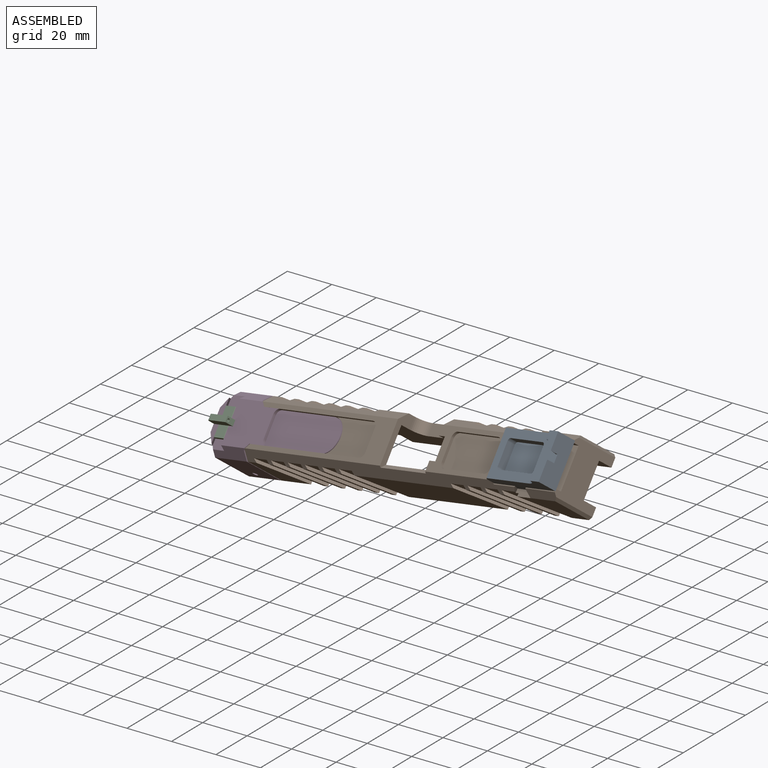
[diagram: assembled view]
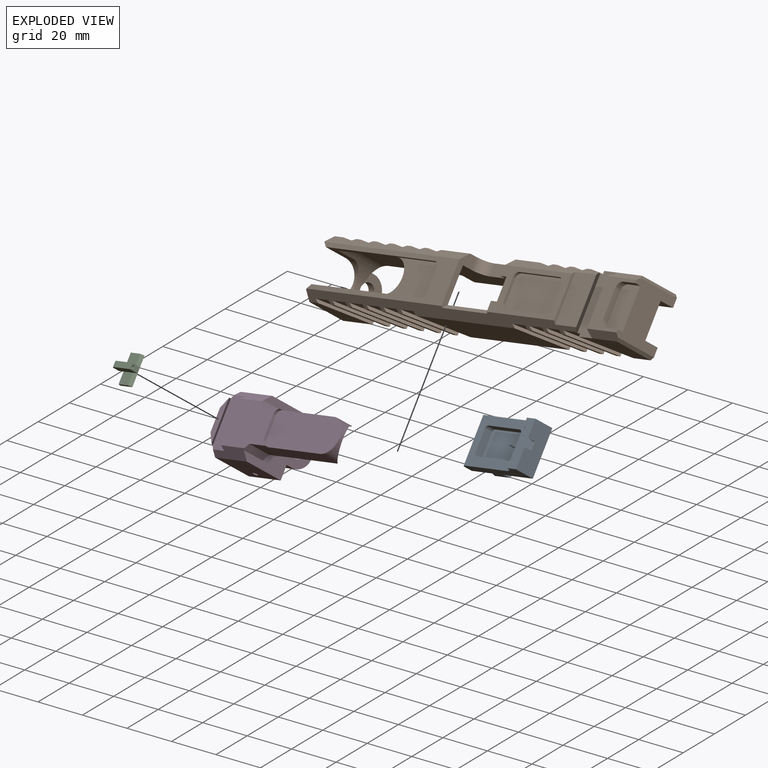
[diagram: exploded view]
GUIDED TOUR — MATED ASSEMBLY (Onshape document 9dbe3490bae622596801388b, AutoMate assembly 9dbe3490bae622596801388b_7340980fd5a3a3c24a6542d4_834514834a4c5244cc62e794_default)

This assembly has 4 components, labeled P0..P3 below (a component is one placed occurrence of a part; the same part can appear more than once), held together by 5 mates. A mate is a constraint between two components; its type names the relative motion it leaves free:
  PLANAR — leaves sliding in the plane through the listed point (normal = the listed direction) and rotation about that normal free.
Axis/direction vectors are unit vectors and 'through' points are millimeter coordinates, both in the assembly's world frame.

MATES
  1. PLANAR "Planar 4": P2 <-> P3, direction (0.363, 0.709, -0.605) through (-193.44, -1.95, -23.55) mm
  2. PLANAR "Planar 2": P3 <-> P1, direction (-0.029, 0.658, 0.753) through (-168.59, -9.09, -14.50) mm
  3. PLANAR "Planar 5": P0 <-> P1, direction (0.363, 0.709, -0.605) through (-20.52, -51.45, 18.34) mm
  4. PLANAR "Planar 3": P2 <-> P3, direction (-0.988, -0.133, 0.078) through (-193.12, -6.78, -27.76) mm
  5. PLANAR "Planar 1": P1 <-> P3, direction (-0.363, -0.709, 0.605) through (-125.09, -25.86, -8.06) mm

ASSEMBLY ORDER
  1. P3 — the base component [order heuristic]
  2. P1 — core [order heuristic]
  3. P2 [order verified]
  4. P0 [order verified]
Order-tag legend:
  [order verified] — this step's position reverses a verified removal order: the component was checked to insert without passing through the ones already placed.
  [order heuristic] — the first 2 components form the assembly's core: parts whose collision-free extraction could not be verified, listed in mate-graph order.

Of the 4 components, 1 carries the full construction recipe — the FeatureScript program that regenerates the part's solid from scratch; the rest are supplied as boundary geometry only.
Each toured component is shown spotlighted twice — in the assembled view, then in the exploded view, where a leader line traces a displaced component back to its assembled socket (saturated green if recipe-attached, orange if geometry-only; every other component desaturated gray) — followed by its recipe or geometry summary and the mates that hold it.
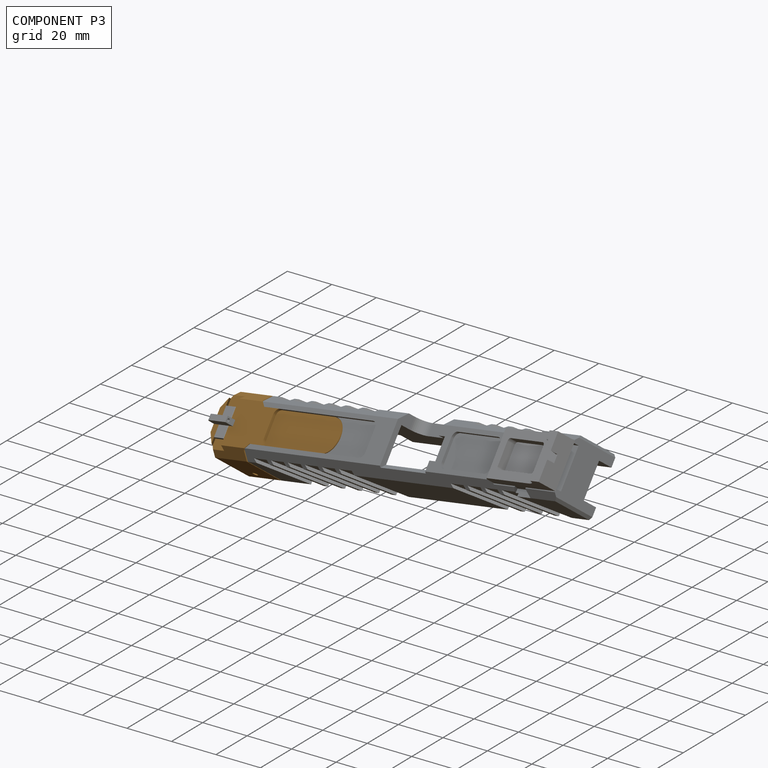
[diagram: component P3 — assembled]
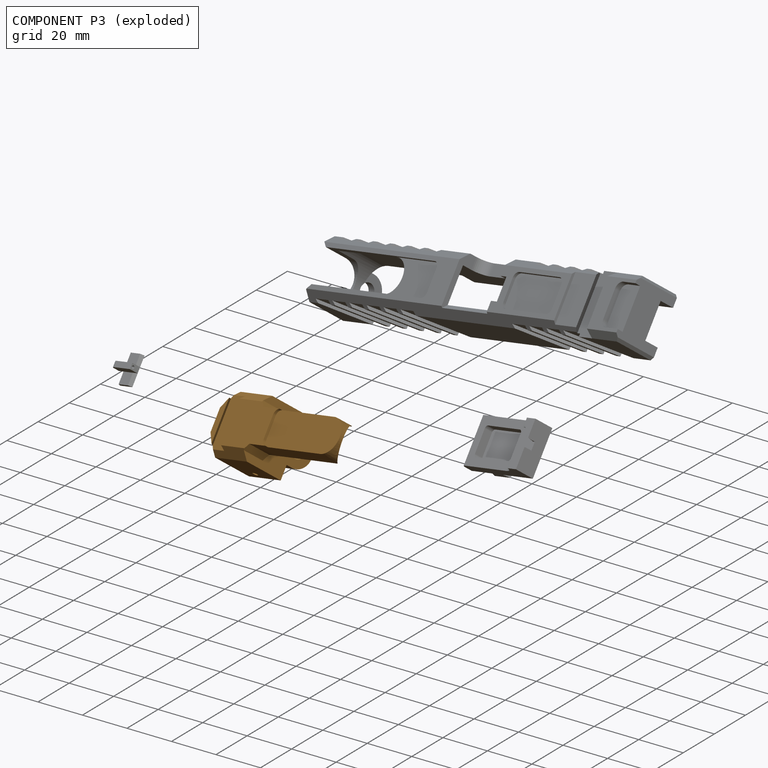
[diagram: component P3 — exploded]
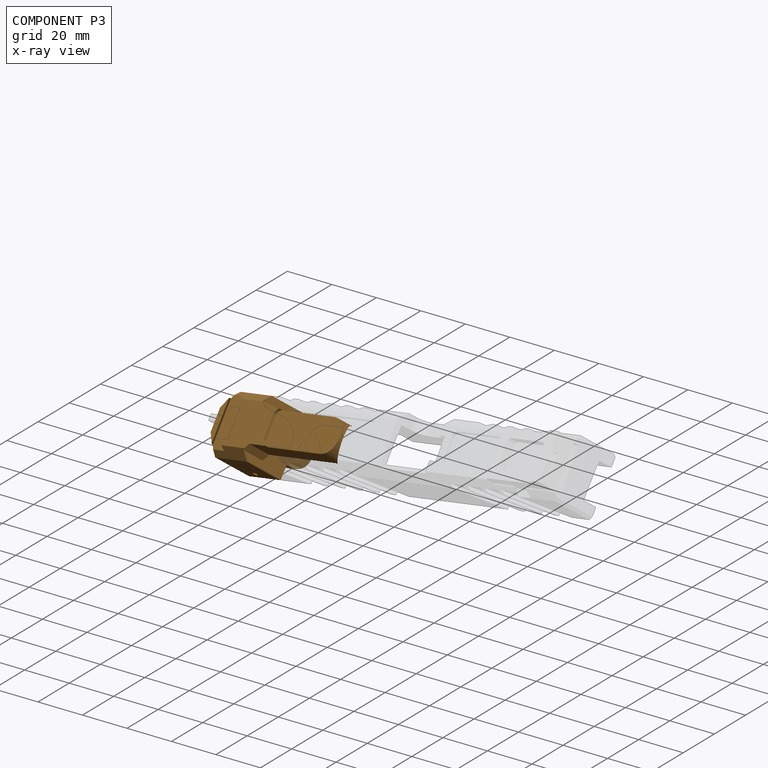
[diagram: component P3 — x-ray view]
COMPONENT P3 — geometry summary (no construction recipe available for this part):
  bounding box: 75.2 x 31.3 x 26.4 mm
  B-rep topology: 1 solid, 35 faces, 212 edges
  volume: 11614 mm^3 (19% of its bounding box)
  symmetry: mirror-symmetric across its x mid-plane
Held by: PLANAR mate "Planar 4" to P2; PLANAR mate "Planar 2" to P1; PLANAR mate "Planar 3" to P2; PLANAR mate "Planar 1" to P1.
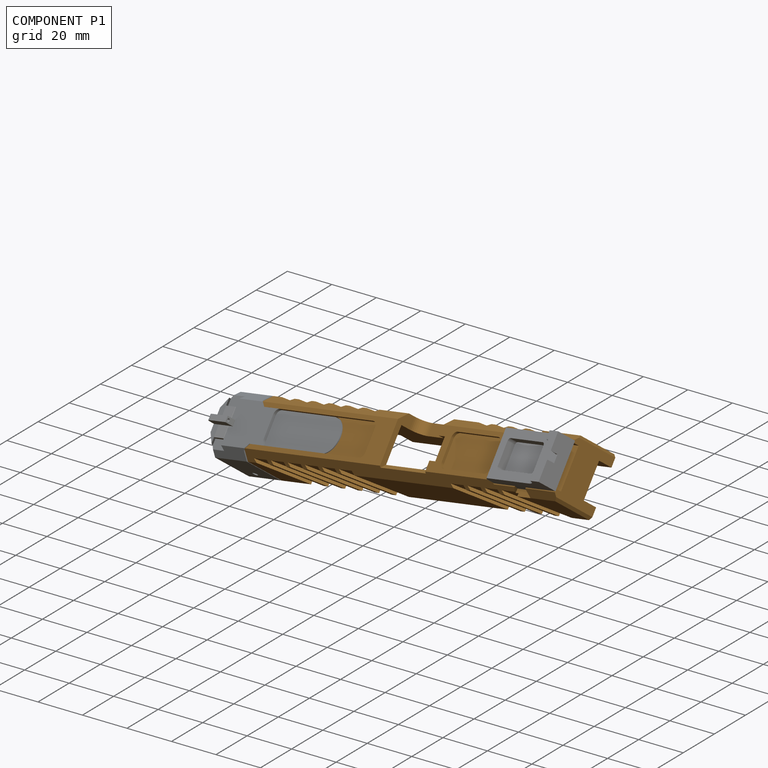
[diagram: component P1 — assembled]
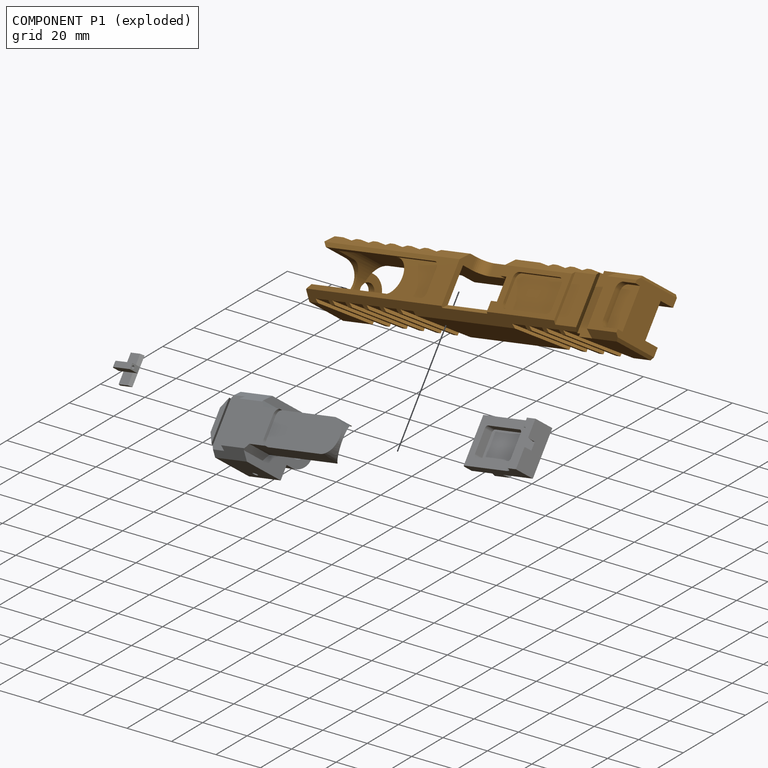
[diagram: component P1 — exploded]
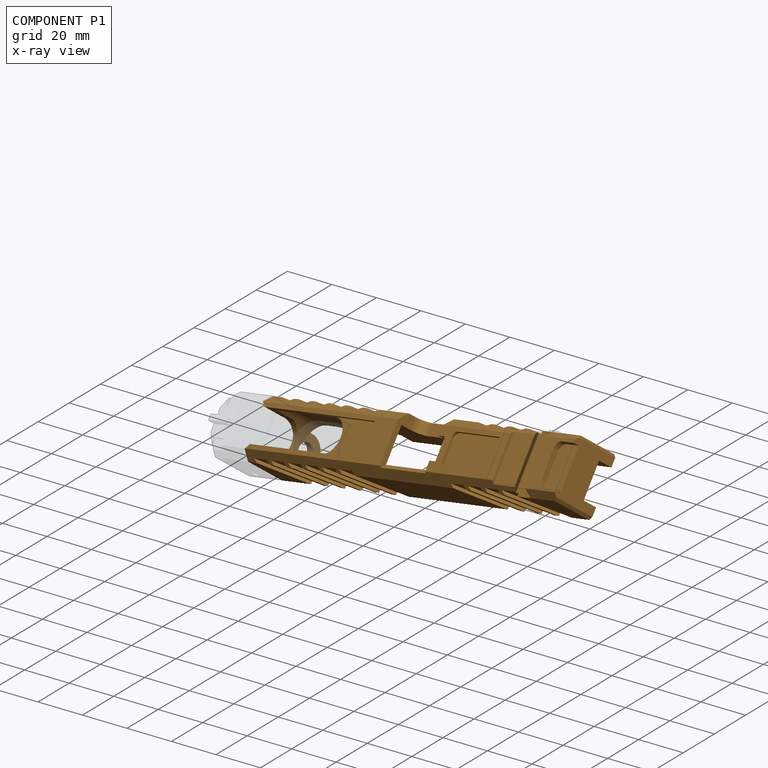
[diagram: component P1 — x-ray view]
COMPONENT P1 — geometry summary (no construction recipe available for this part):
  bounding box: 184.9 x 31.3 x 26.4 mm
  B-rep topology: 1 solid, 158 faces, 954 edges
  volume: 46992 mm^3 (31% of its bounding box)
Held by: PLANAR mate "Planar 2" to P3; PLANAR mate "Planar 5" to P0; PLANAR mate "Planar 1" to P3.
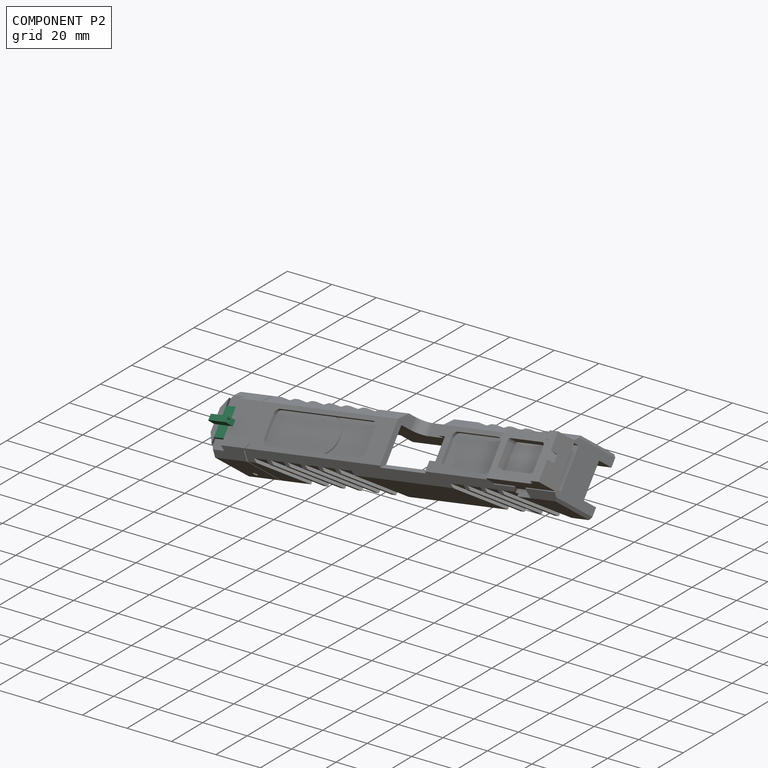
[diagram: component P2 — assembled]
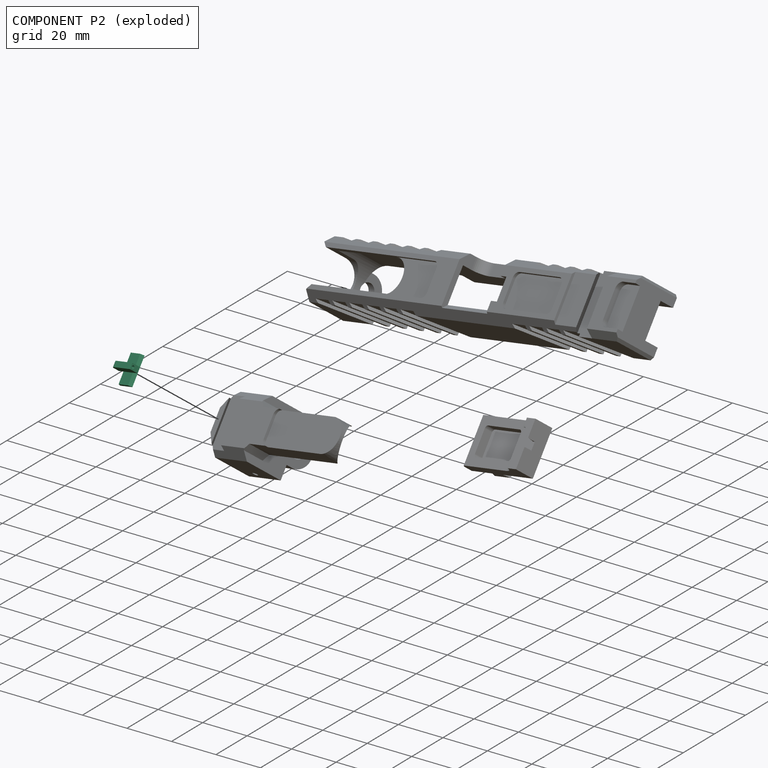
[diagram: component P2 — exploded]
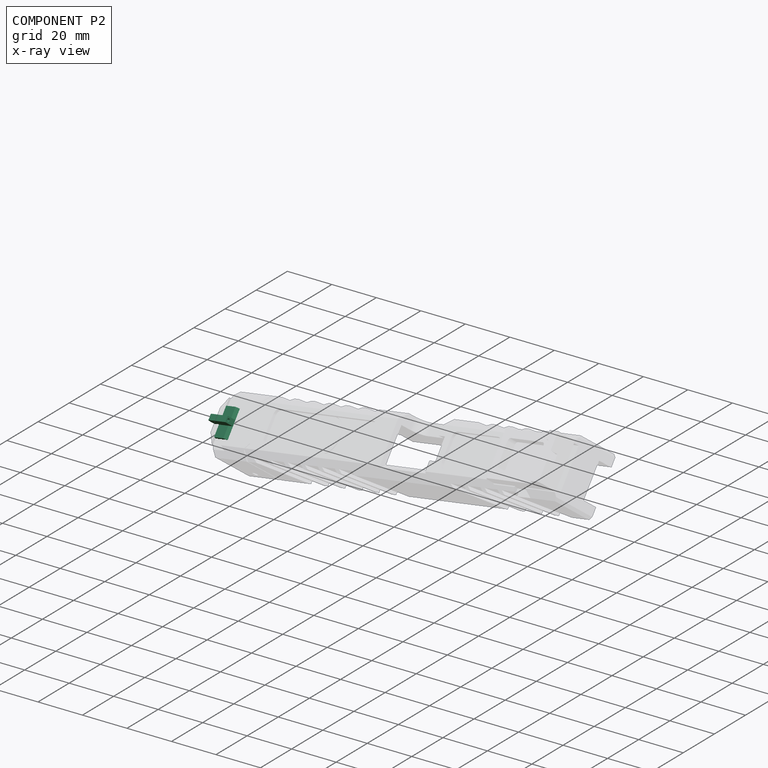
[diagram: component P2 — x-ray view]
COMPONENT P2 — recipe-attached (CADFS 00931303, mesh-verified: the recipe's output STEP matches this component's geometry to below the mesh-comparison resolution (tessellation chordal tolerance ~0.0266 mm)).
Held by: PLANAR mate "Planar 4" to P3; PLANAR mate "Planar 3" to P3.
Construction recipe (FeatureScript — the CAD program that rebuilds this solid; sketch coordinates are in the units given by the * unit suffixes, e.g. mm):

FeatureScript 1511;
import(path : "onshape/std/geometry.fs", version : "1511.0");
import(path : "onshape/std/common.fs", version : "1511.0");
const mm = millimeter;
const VERTEX = EntityType.VERTEX;
const EDGE = EntityType.EDGE;
const FACE = EntityType.FACE;
const BODY = EntityType.BODY;
function v(x, y){return vector(x, y);}
function OD(order){return orderDisambiguation(order);}
function OSD(set){return originalSetDisambiguation(set);}
function TD(topology){return topologyDisambiguation(topology);}
function TDD(query){return trueDependencyDisambiguation(query);}
function sQuery(a, b, c) {return sketchEntityQuery(a, b, c);}

annotation { "Feature Type Name" : "Feature", "Feature Type Description" : "" }
export const myFeature = defineFeature(function(context is Context, id is Id, definition is map)
    precondition{}
    {
        {
            var Q0;
            Q0=qCreatedBy(makeId("Front.planeOp"),FACE);
            var sketch = newSketch(context, id + "F0", { "sketchPlane" : qUnion([Q0])});
            skLineSegment(sketch, "E0", {"start": v(-3.74, 0) * mm, "end": v(3.62, 0) * mm});
            skLineSegment(sketch, "E1", {"start": v(3.62, 0) * mm, "end": v(2.74, 1.52) * mm});
            skLineSegment(sketch, "E2", {"start": v(2.74, 1.52) * mm, "end": v(5.49, 1.52) * mm});
            skLineSegment(sketch, "E3", {"start": v(5.49, 1.52) * mm, "end": v(5.49, 5.46) * mm});
            skLineSegment(sketch, "E4", {"start": v(5.49, 5.46) * mm, "end": v(-5.6, 5.46) * mm});
            skLineSegment(sketch, "E5", {"start": v(-5.6, 5.46) * mm, "end": v(-5.6, 1.52) * mm});
            skLineSegment(sketch, "E6", {"start": v(-5.6, 1.52) * mm, "end": v(-2.86, 1.52) * mm});
            skLineSegment(sketch, "E7", {"start": v(-2.86, 1.52) * mm, "end": v(-3.74, 0) * mm});
            skSolve(sketch);
        }
        {
            var Q0;
            Q0=makeQuery(id+"F0.imprint","IMPRINT",FACE,{"disambiguationData":[TD([[makeQuery(id+"F0.imprint","IMPRINT",EDGE,{"derivedFrom":sQuery(id+"F0.wireOp",EDGE,"E0")}),1.0]])]});
            extrude(context, id + "F1", {"entities" : qUnion([Q0]), "depth" : 12.7 * mm, "offsetDistance" : 25.4 * mm});
        }
        {
            var Q0;
            Q0=makeQuery(id+"F1.opExtrude","SWEPT_FACE",FACE,{"disambiguationData":[OSD([sQuery(id+"F0.wireOp",EDGE,"E3")])]});
            var sketch = newSketch(context, id + "F2", { "sketchPlane" : qUnion([Q0])});
            skLineSegment(sketch, "E8", {"start": v(-12.7, 1.52) * mm, "end": v(-7.62, 1.52) * mm});
            skLineSegment(sketch, "E9", {"start": v(-7.62, 1.52) * mm, "end": v(-7.62, 5.46) * mm});
            skLineSegment(sketch, "E10", {"start": v(-7.62, 5.46) * mm, "end": v(-5.08, 5.46) * mm});
            skLineSegment(sketch, "E11", {"start": v(-5.08, 5.46) * mm, "end": v(-5.08, 1.52) * mm});
            skLineSegment(sketch, "E12", {"start": v(-5.08, 1.52) * mm, "end": v(0, 1.52) * mm});
            skLineSegment(sketch, "E13", {"start": v(0, 1.52) * mm, "end": v(0, 0) * mm});
            skLineSegment(sketch, "E14", {"start": v(0, 0) * mm, "end": v(-12.7, 0) * mm});
            skLineSegment(sketch, "E15", {"start": v(-12.7, 0) * mm, "end": v(-12.7, 1.52) * mm});
            skSolve(sketch);
        }
        {
            var Q0;
            {var subQ0=sQuery(id+"F2.wireOp",EDGE,"E9");Q0=makeQuery(id+"F2.imprint","IMPRINT",FACE,{"disambiguationData":[TD([[makeQuery(id+"F2.imprint","IMPRINT",EDGE,{"derivedFrom":subQ0}),-1.0]])]});}
            var Q1;
            {var subQ1=sQuery(id+"F2.wireOp",EDGE,"E8");Q1=makeQuery(id+"F2.imprint","IMPRINT",FACE,{"disambiguationData":[TD([[makeQuery(id+"F2.imprint","IMPRINT",EDGE,{"derivedFrom":subQ1}),-1.0]])]});}
            extrude(context, id + "F3", {"entities" : qUnion([Q0, Q1]), "operationType" : NewBodyOperationType.INTERSECT, "oppositeDirection" : true, "depth" : 25.4 * mm, "offsetDistance" : 25.4 * mm});
        }
        {
            var Q0;
            Q0=makeQuery(id+"F1.opExtrude","SWEPT_EDGE",EDGE,{"disambiguationData":[OSD([sQuery(id+"F0.wireOp",EDGE,"E4"),sQuery(id+"F0.wireOp",EDGE,"E5")])]});
            fillet(context, id + "F4", {"entities" : qUnion([Q0]), "radius" : 1.52 * mm, "tangentPropagation" : true, "allowEdgeOverflow" : false});
        }
        {
            var Q0;
            Q0=makeQuery(id+"F1.opExtrude","SWEPT_FACE",FACE,{"disambiguationData":[OSD([sQuery(id+"F0.wireOp",EDGE,"E3")])]});
            var sketch = newSketch(context, id + "F5", { "sketchPlane" : qUnion([Q0])});
            skCircle(sketch, "E16", {"center": v(-6.35, 4.45) * mm, "radius": 0.64 * mm});
            skSolve(sketch);
        }
        {
            var Q0;
            Q0=makeQuery(id+"F5.imprint","IMPRINT",FACE,{"disambiguationData":[TD([[makeQuery(id+"F5.imprint","IMPRINT",EDGE,{"derivedFrom":sQuery(id+"F5.wireOp",EDGE,"E16")}),1.0]])]});
            extrude(context, id + "F6", {"entities" : qUnion([Q0]), "operationType" : NewBodyOperationType.REMOVE, "oppositeDirection" : true, "depth" : 25.4 * mm, "offsetDistance" : 25.4 * mm});
        }
    });
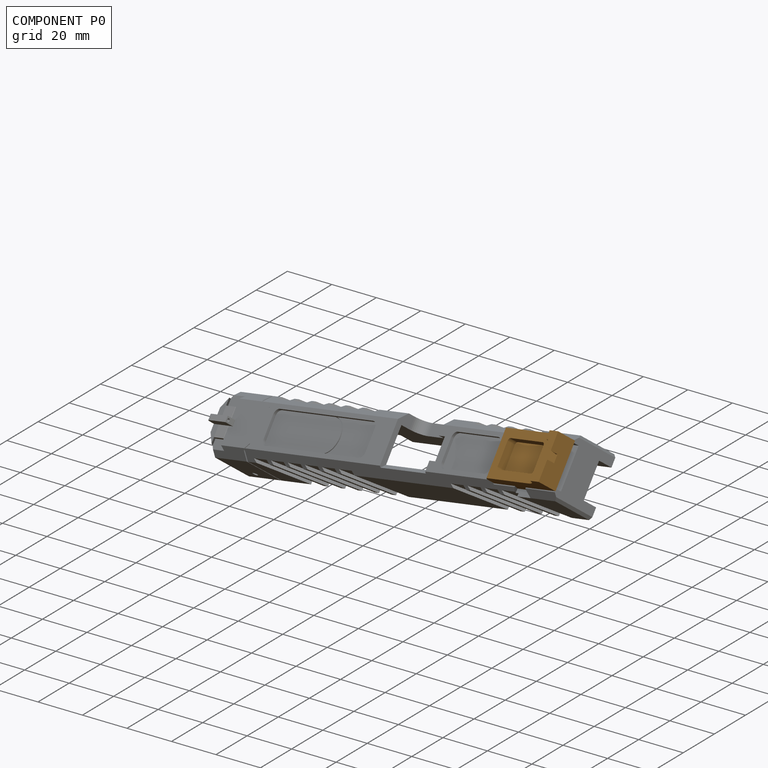
[diagram: component P0 — assembled]
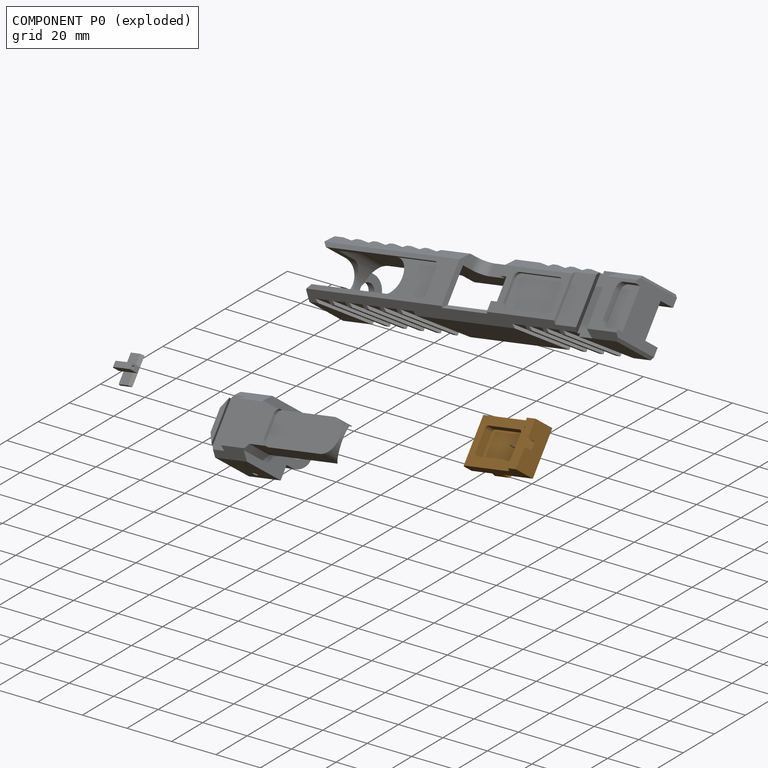
[diagram: component P0 — exploded]
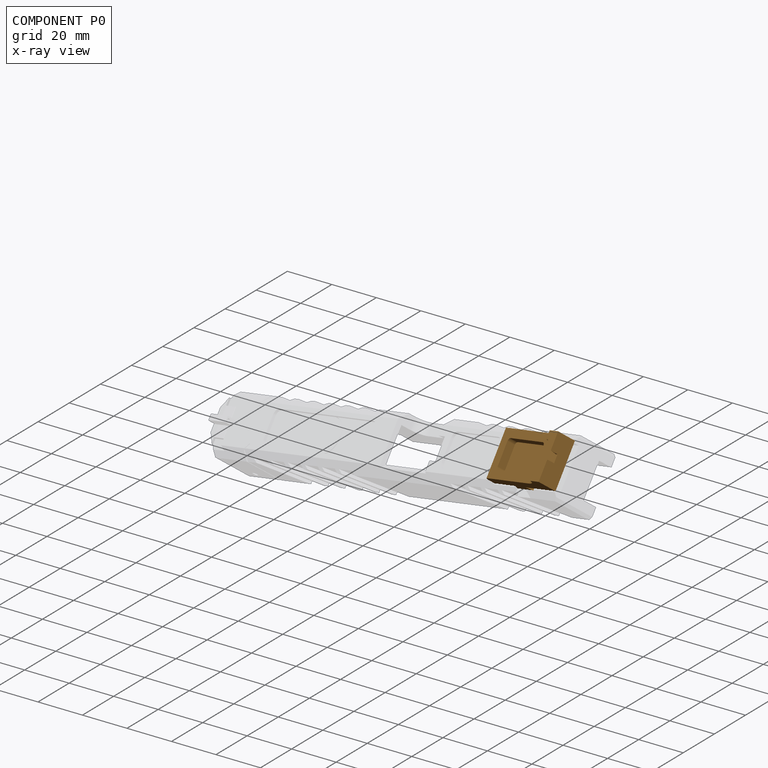
[diagram: component P0 — x-ray view]
COMPONENT P0 — geometry summary (no construction recipe available for this part):
  bounding box: 37.0 x 20.7 x 12.6 mm
  B-rep topology: 1 solid, 28 faces, 150 edges
  volume: 3563 mm^3 (37% of its bounding box)
Held by: PLANAR mate "Planar 5" to P1.
PROVENANCE & LICENSES
Assembly (occurrences, transforms, mates, per-part STEP geometry): AutoMate dataset, Zenodo record 7776208, CC0.
Construction recipes: CADFS (HuggingFace VladPyatov/CADFS, CC-BY-4.0, layered over the ABC dataset), FeatureScript reconstruction programs keyed by ABC model id.
Join: ABC meta listings map ABC model id -> Onshape documentId; within a shared document, parts are matched by geometric signature (bounding-box dims + volume at 0.1% relative tolerance, exact B-rep face/solid counts).
Verification: 1 of this assembly's 4 components carries a recipe attachment, and every attachment is mesh-verified: the CADFS STEP and the AutoMate member STEP were compared as meshes in their shared local frame (symmetric sampled-point-to-mesh distance); worst across the 1 attachment: below the mesh-comparison resolution (tessellation chordal tolerance ~0.0266 mm) on a 18 mm part.
Renders: orthographic iso camera (az 35 / el 25); the floor grid conveys scale (grid pitch printed in each image; no ruler). In the exploded view each component is displaced by its stored offset vector: the offsets alone carry the explosion direction (mate normal/axis signs are not orientation cues and do not encode it), and separation distances are assigned per mate-chain, not proportionally to assembly-order depth.
